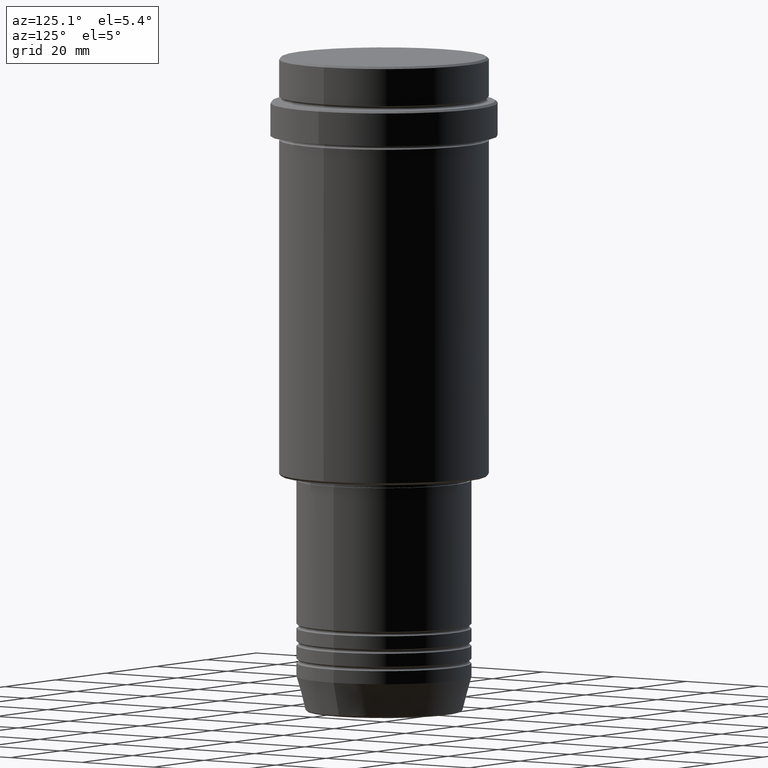
[diagram: clean part render]
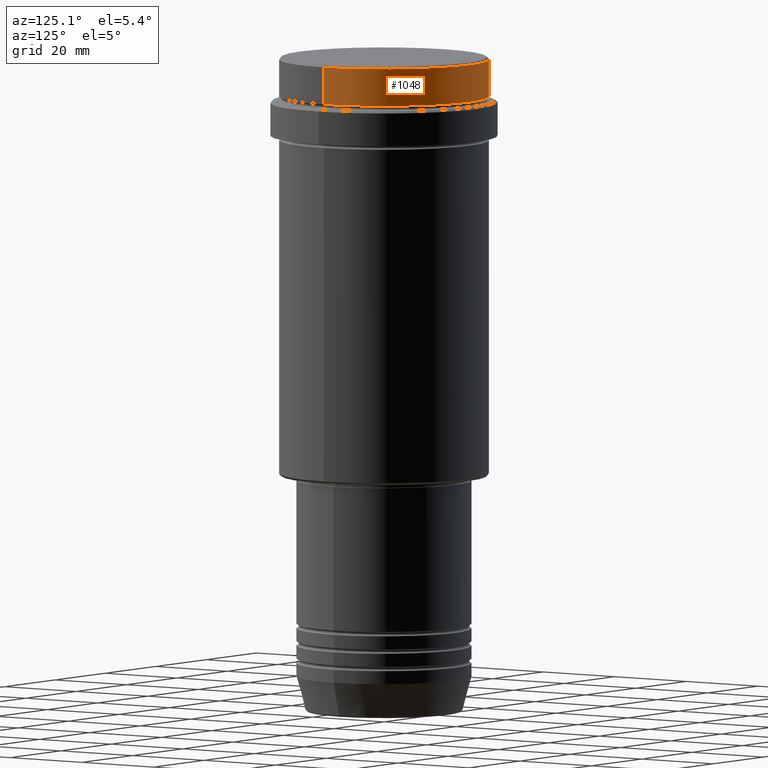
[diagram: same view with one face highlighted and labeled with its STEP entity id]
A machine part, auxiliary view. The second image highlights one B-rep face of the part: STEP entity #1048.
In plain terms, the highlighted cylindrical surface (partial cylindrical patch) has radius 24 mm, axis along (-0, -0, 1).
Its self-contained STEP definition (entity closure, byte-faithful):
#24 = DIRECTION ( 'NONE',  ( 1.000000000000000000, 0.000000000000000000, 0.000000000000000000 ) ) ;
#36 = AXIS2_PLACEMENT_3D ( 'NONE', #1090, #666, #596 ) ;
#72 = VERTEX_POINT ( 'NONE', #491 ) ;
#82 = VERTEX_POINT ( 'NONE', #181 ) ;
#106 = VECTOR ( 'NONE', #414, 1000.000000000000000 ) ;
#155 = FACE_OUTER_BOUND ( 'NONE', #552, .T. ) ;
#181 = CARTESIAN_POINT ( 'NONE',  ( -23.99999999999999289, 2.939152317953647106E-15, -0.5000000000000419664 ) ) ;
#251 = CARTESIAN_POINT ( 'NONE',  ( 0.000000000000000000, 0.000000000000000000, 0.000000000000000000 ) ) ;
#296 = EDGE_CURVE ( 'NONE', #72, #588, #580, .T. ) ;
#410 = EDGE_CURVE ( 'NONE', #588, #82, #690, .T. ) ;
#414 = DIRECTION ( 'NONE',  ( -0.000000000000000000, -0.000000000000000000, 1.000000000000000000 ) ) ;
#449 = VECTOR ( 'NONE', #1022, 1000.000000000000000 ) ;
#491 = CARTESIAN_POINT ( 'NONE',  ( 23.99999999999998579, 0.000000000000000000, -8.999999999999998224 ) ) ;
#546 = EDGE_CURVE ( 'NONE', #72, #699, #950, .T. ) ;
#552 = EDGE_LOOP ( 'NONE', ( #901, #865, #903, #1002 ) ) ;
#568 = DIRECTION ( 'NONE',  ( -0.000000000000000000, -0.000000000000000000, 1.000000000000000000 ) ) ;
#580 = CIRCLE ( 'NONE', #36, 23.99999999999998579 ) ;
#588 = VERTEX_POINT ( 'NONE', #1196 ) ;
#596 = DIRECTION ( 'NONE',  ( 1.000000000000000000, 0.000000000000000000, 0.000000000000000000 ) ) ;
#609 = EDGE_CURVE ( 'NONE', #82, #699, #941, .T. ) ;
#666 = DIRECTION ( 'NONE',  ( -0.000000000000000000, -0.000000000000000000, 1.000000000000000000 ) ) ;
#690 = LINE ( 'NONE', #1128, #449 ) ;
#699 = VERTEX_POINT ( 'NONE', #1305 ) ;
#739 = AXIS2_PLACEMENT_3D ( 'NONE', #1202, #985, #1411 ) ;
#865 = ORIENTED_EDGE ( 'NONE', *, *, #410, .T. ) ;
#901 = ORIENTED_EDGE ( 'NONE', *, *, #296, .T. ) ;
#903 = ORIENTED_EDGE ( 'NONE', *, *, #609, .T. ) ;
#936 = CARTESIAN_POINT ( 'NONE',  ( 23.99999999999999289, 0.000000000000000000, 0.000000000000000000 ) ) ;
#941 = CIRCLE ( 'NONE', #739, 23.99999999999999289 ) ;
#950 = LINE ( 'NONE', #936, #106 ) ;
#985 = DIRECTION ( 'NONE',  ( 0.000000000000000000, 0.000000000000000000, -1.000000000000000000 ) ) ;
#1002 = ORIENTED_EDGE ( 'NONE', *, *, #546, .F. ) ;
#1022 = DIRECTION ( 'NONE',  ( -0.000000000000000000, -0.000000000000000000, 1.000000000000000000 ) ) ;
#1048 = ADVANCED_FACE ( 'NONE', ( #155 ), #1354, .T. ) ;
#1090 = CARTESIAN_POINT ( 'NONE',  ( 0.000000000000000000, 0.000000000000000000, -8.999999999999998224 ) ) ;
#1128 = CARTESIAN_POINT ( 'NONE',  ( -23.99999999999999289, 2.939152317953647106E-15, 0.000000000000000000 ) ) ;
#1154 = AXIS2_PLACEMENT_3D ( 'NONE', #251, #568, #24 ) ;
#1196 = CARTESIAN_POINT ( 'NONE',  ( -23.99999999999998579, 2.939152317953646711E-15, -8.999999999999998224 ) ) ;
#1202 = CARTESIAN_POINT ( 'NONE',  ( 0.000000000000000000, 0.000000000000000000, -0.5000000000000419664 ) ) ;
#1305 = CARTESIAN_POINT ( 'NONE',  ( 23.99999999999999289, 0.000000000000000000, -0.5000000000000419664 ) ) ;
#1354 = CYLINDRICAL_SURFACE ( 'NONE', #1154, 23.99999999999999289 ) ;
#1411 = DIRECTION ( 'NONE',  ( 1.000000000000000000, 0.000000000000000000, 0.000000000000000000 ) ) ;